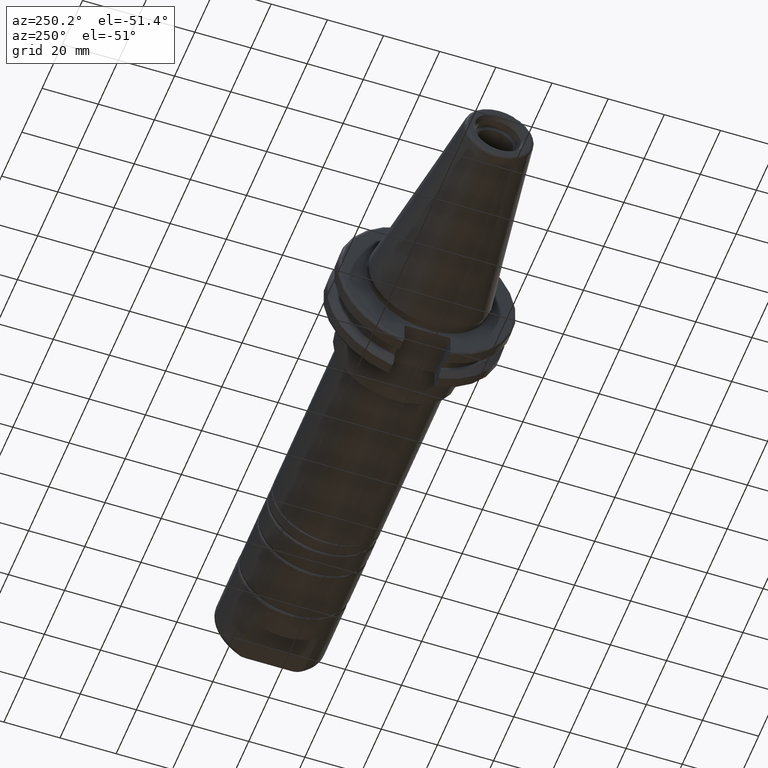
[diagram: clean part render]
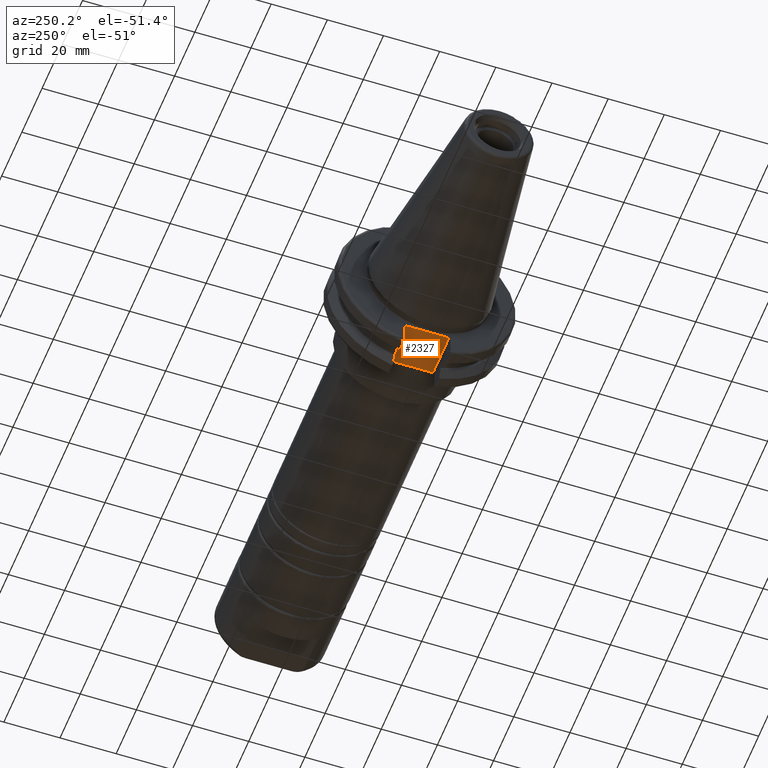
[diagram: same view with one face highlighted and labeled with its STEP entity id]
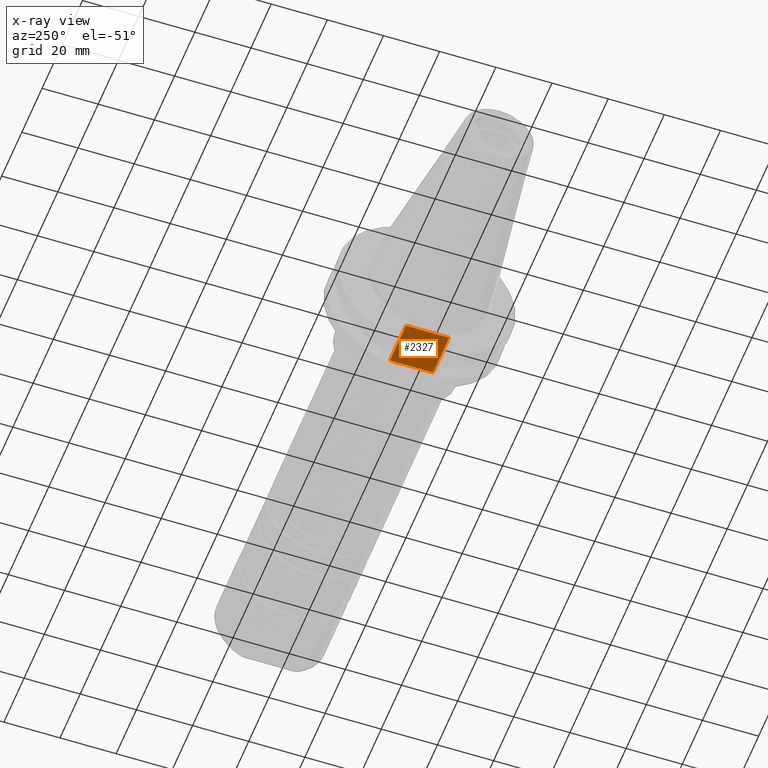
[diagram: x-ray of the same camera — body ghosted, the highlighted face saturated]
A machine part, auxiliary view. The second image highlights one B-rep face of the part: STEP entity #2327.
The next image is the same camera in x-ray: the body ghosted, the highlighted face saturated — about 0% of this face is hidden behind the body in this view.
In plain terms, the highlighted planar face has unit normal (0, 0, 1).
Its self-contained STEP definition (entity closure, byte-faithful):
#771=FACE_OUTER_BOUND('',#891,.T.);
#891=EDGE_LOOP('',(#1885,#1886,#1887,#1888));
#1001=LINE('',#3812,#1133);
#1020=LINE('',#3909,#1152);
#1038=LINE('',#4080,#1170);
#1039=LINE('',#4082,#1171);
#1133=VECTOR('',#3020,10.);
#1152=VECTOR('',#3057,10.);
#1170=VECTOR('',#3121,10.);
#1171=VECTOR('',#3124,10.);
#1275=VERTEX_POINT('',#3809);
#1276=VERTEX_POINT('',#3811);
#1301=VERTEX_POINT('',#3906);
#1302=VERTEX_POINT('',#3908);
#1466=EDGE_CURVE('',#1275,#1276,#1001,.T.);
#1497=EDGE_CURVE('',#1301,#1302,#1020,.T.);
#1543=EDGE_CURVE('',#1302,#1275,#1038,.T.);
#1544=EDGE_CURVE('',#1276,#1301,#1039,.T.);
#1885=ORIENTED_EDGE('',*,*,#1543,.F.);
#1886=ORIENTED_EDGE('',*,*,#1497,.F.);
#1887=ORIENTED_EDGE('',*,*,#1544,.F.);
#1888=ORIENTED_EDGE('',*,*,#1466,.F.);
#2249=PLANE('',#2673);
#2327=ADVANCED_FACE('',(#771),#2249,.F.);
#2673=AXIS2_PLACEMENT_3D('',#4081,#3122,#3123);
#3020=DIRECTION('',(0.,-1.,0.));
#3057=DIRECTION('',(0.,1.,0.));
#3121=DIRECTION('',(-1.,-1.31581988103722E-16,0.));
#3122=DIRECTION('center_axis',(0.,0.,1.));
#3123=DIRECTION('ref_axis',(1.,0.,0.));
#3124=DIRECTION('',(1.,0.,0.));
#3809=CARTESIAN_POINT('',(3.175,7.69,-22.6));
#3811=CARTESIAN_POINT('',(3.175,-7.69,-22.6));
#3812=CARTESIAN_POINT('',(3.175,15.875,-22.6));
#3906=CARTESIAN_POINT('',(19.05,-7.69,-22.6));
#3908=CARTESIAN_POINT('',(19.05,7.69,-22.6));
#3909=CARTESIAN_POINT('',(19.05,-2.77555756156289E-16,-22.6));
#4080=CARTESIAN_POINT('',(9.44125,7.69,-22.6));
#4081=CARTESIAN_POINT('Origin',(15.7075,-5.55111512312578E-16,-22.6));
#4082=CARTESIAN_POINT('',(17.87875,-7.69,-22.6));